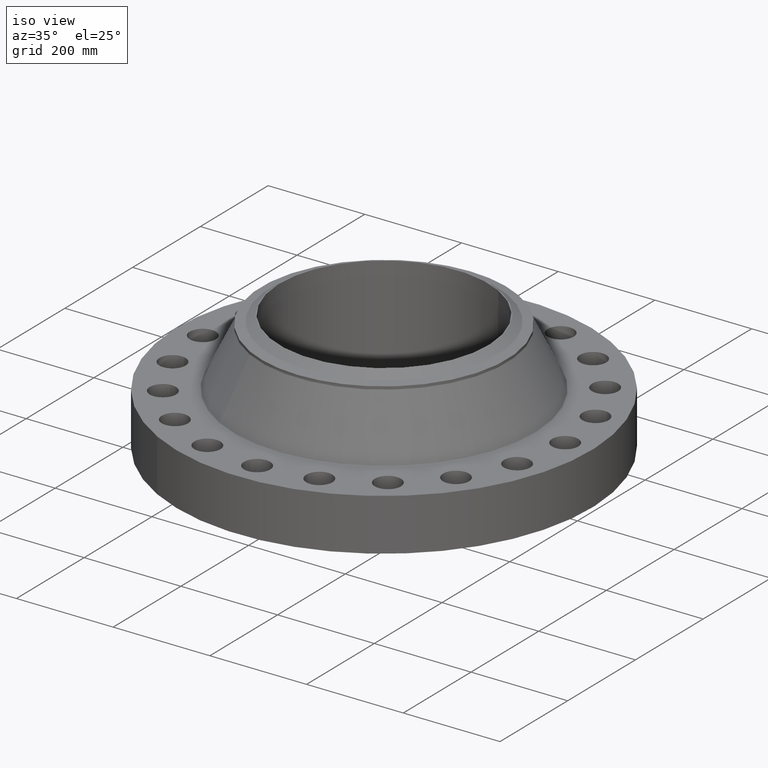
[diagram: clean part render]
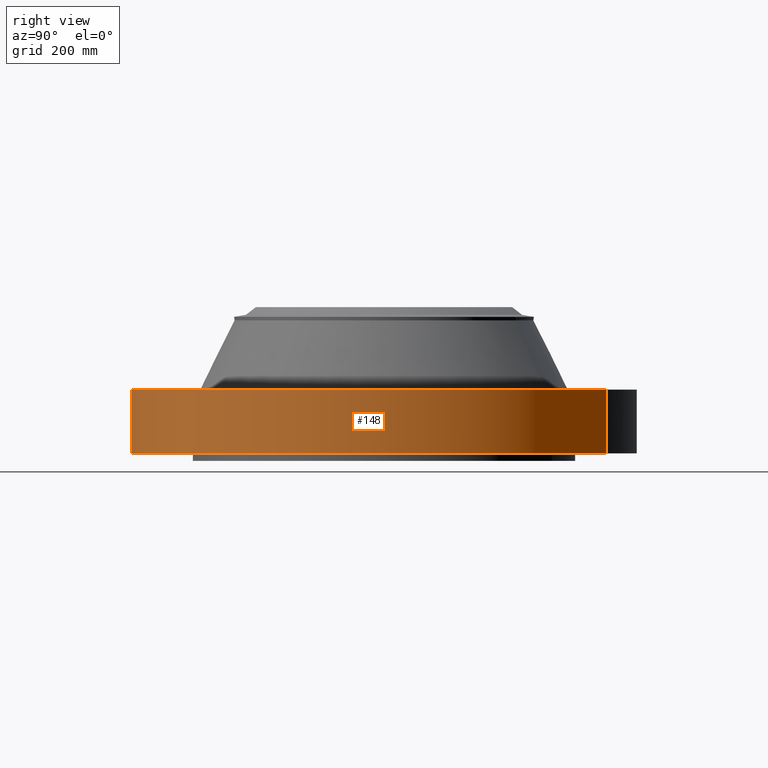
[diagram: tour spotlight — one face highlighted and labeled with its STEP entity id]
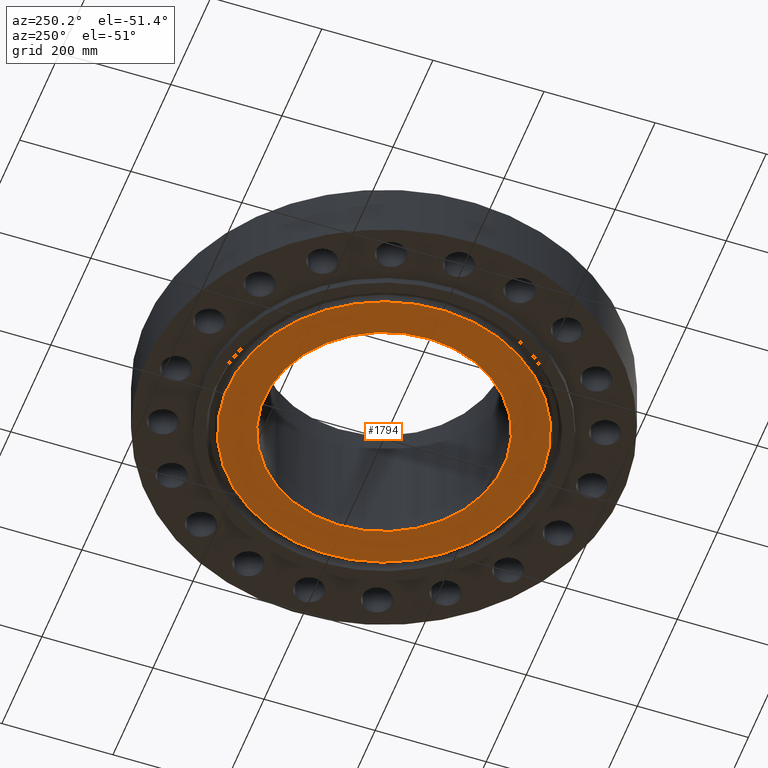
[diagram: tour spotlight — one face highlighted and labeled with its STEP entity id]
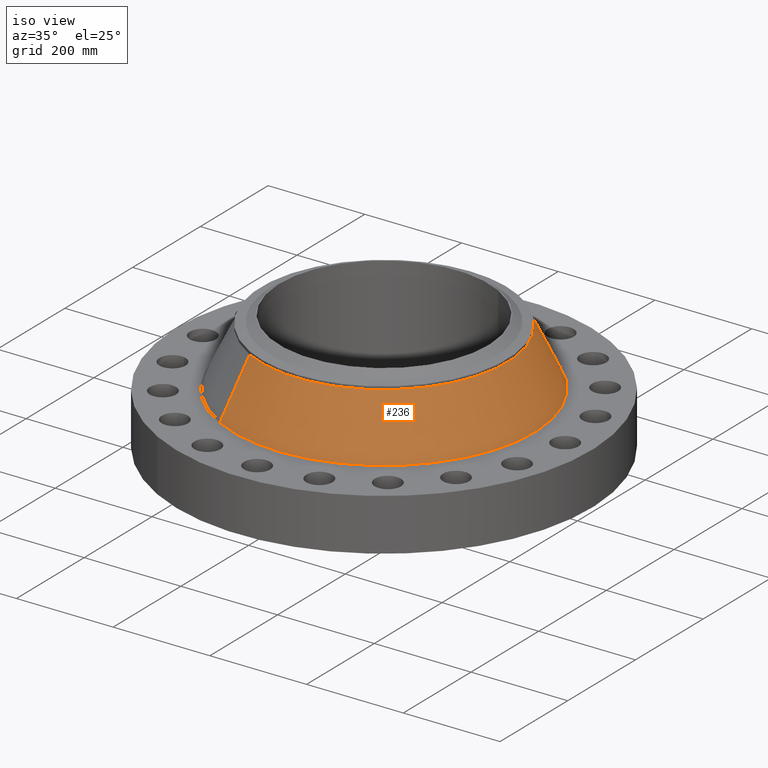
[diagram: tour spotlight — one face highlighted and labeled with its STEP entity id]
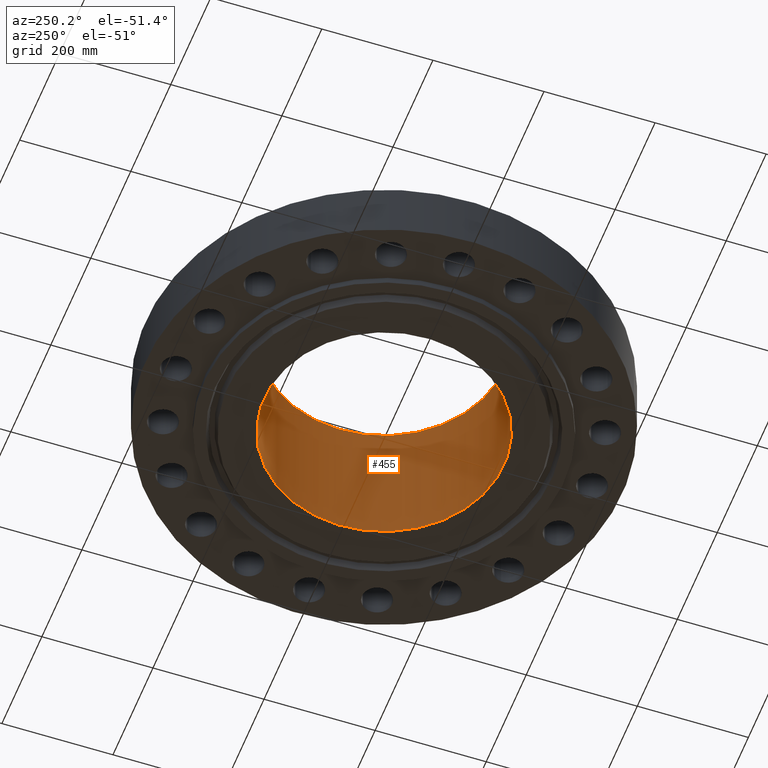
[diagram: tour spotlight — one face highlighted and labeled with its STEP entity id]
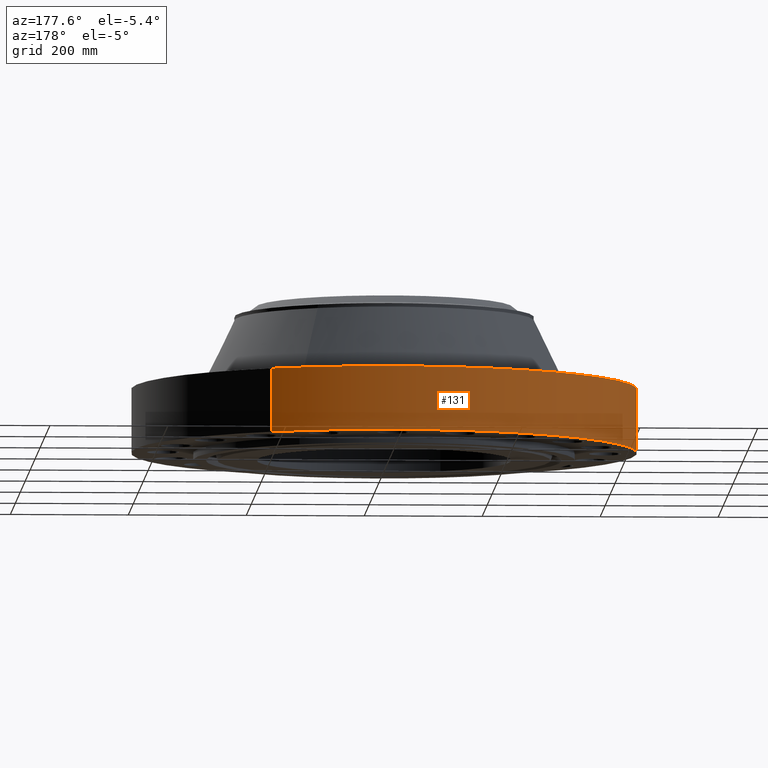
[diagram: tour spotlight — one face highlighted and labeled with its STEP entity id]
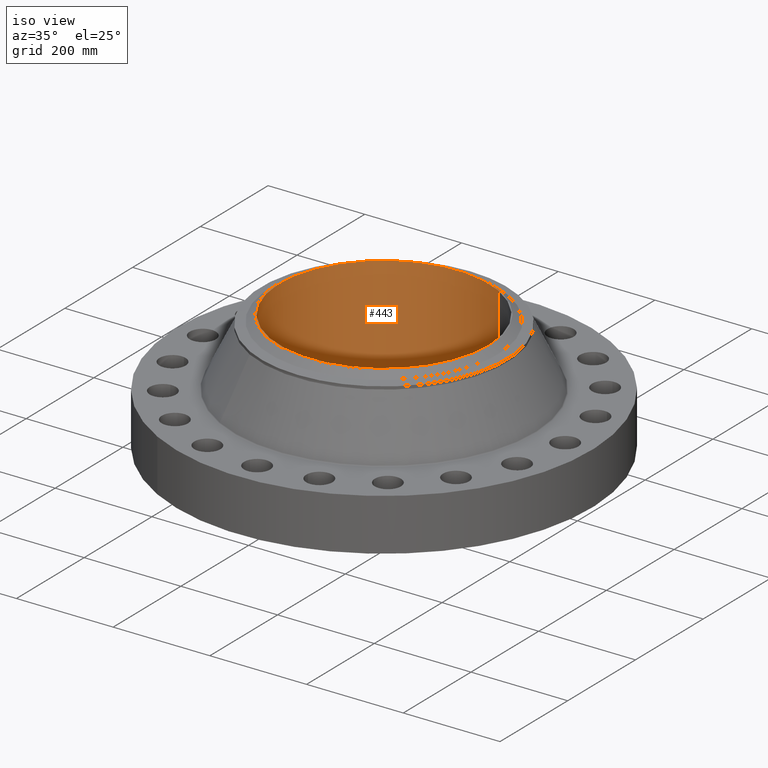
[diagram: tour spotlight — one face highlighted and labeled with its STEP entity id]
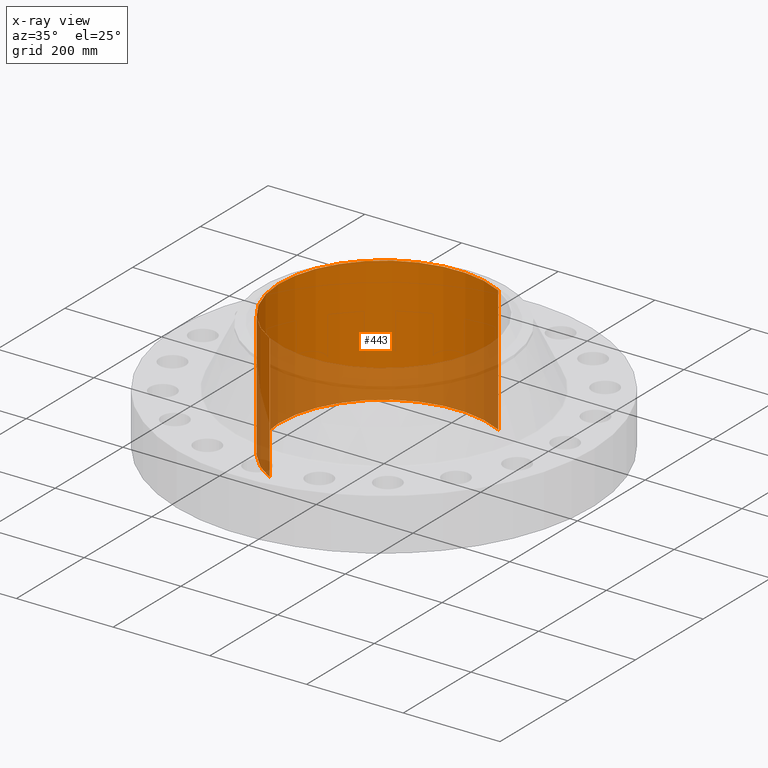
[diagram: x-ray of the same camera — body ghosted, this tour face saturated]
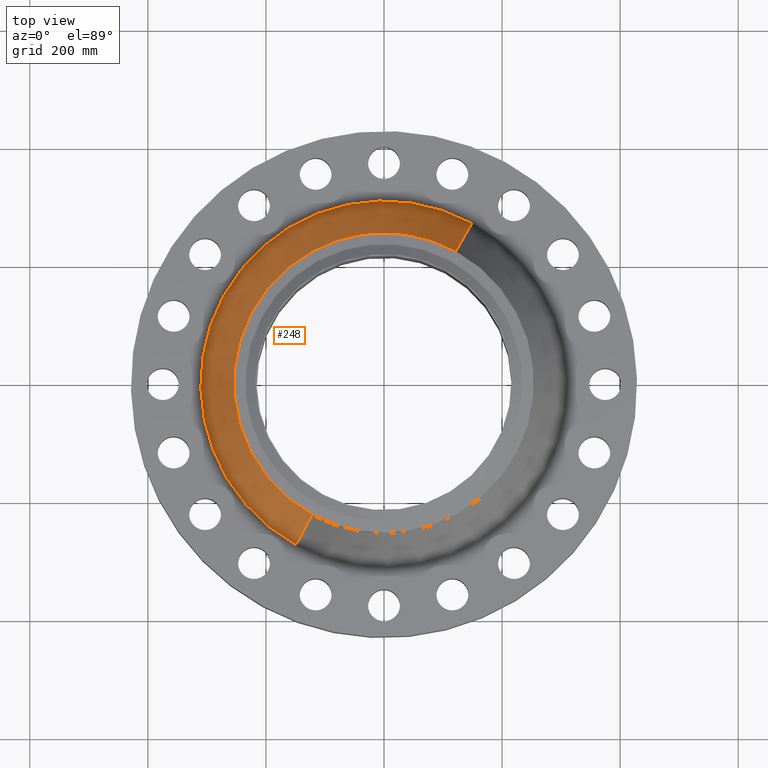
[diagram: tour spotlight — one face highlighted and labeled with its STEP entity id]
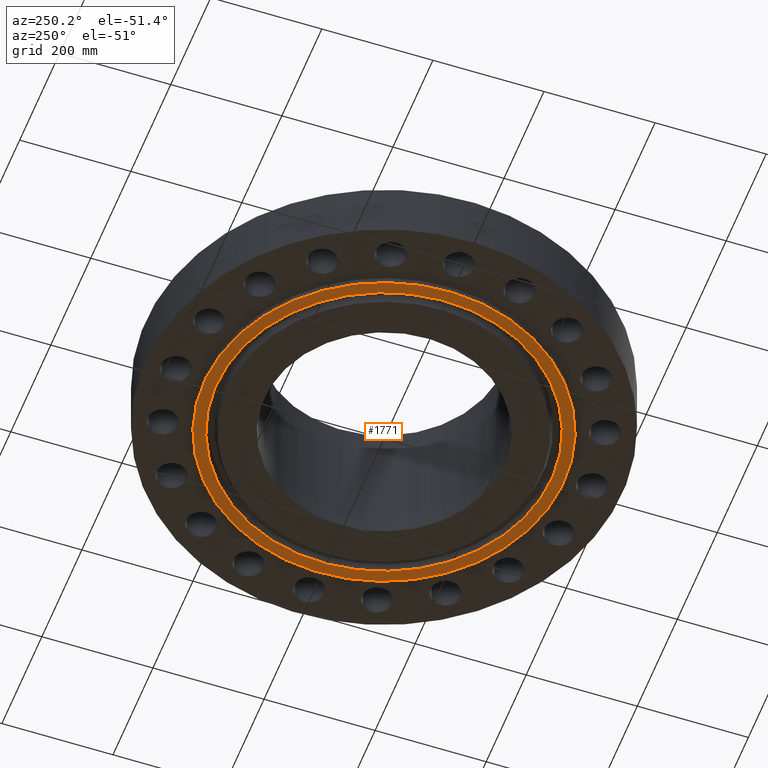
[diagram: tour spotlight — one face highlighted and labeled with its STEP entity id]
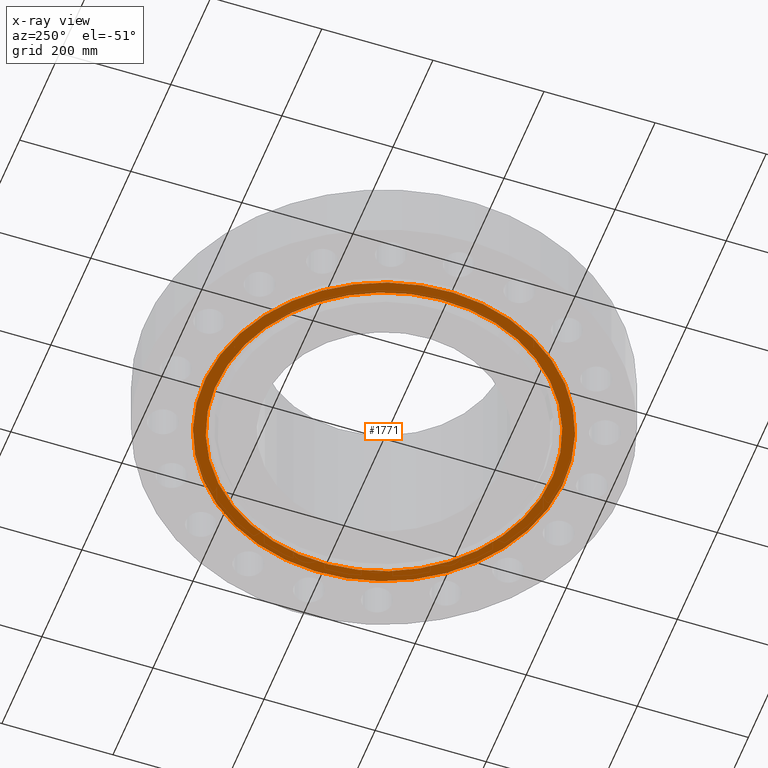
[diagram: x-ray of the same camera — body ghosted, this tour face saturated]
A machine part: a face-by-face anatomy tour. The part has 457 B-rep faces; the first image is the clean iso view, then the 8 largest visible faces are spotlighted one at a time (largest first), each with its STEP entity span.

Face 1 — right view, entity #148. In plain terms, the highlighted cylindrical surface (partial cylindrical patch) has radius 428.625 mm, axis along (0, 0, -1).
Definition (entity closure, byte-faithful):
#95=AXIS2_PLACEMENT_3D('Cylinder Axis2P3D',#92,#93,#94) ;
#134=AXIS2_PLACEMENT_3D('Circle Axis2P3D',#132,#133,$) ;
#139=AXIS2_PLACEMENT_3D('Circle Axis2P3D',#137,#138,$) ;
#92=CARTESIAN_POINT('Axis2P3D Location',(0.,0.,4.62500000002)) ;
#101=CARTESIAN_POINT('Vertex',(-8.09030596398,-14.809205732,1.67844740731E-015)) ;
#103=CARTESIAN_POINT('Vertex',(8.09030596398,14.809205732,1.67844740731E-015)) ;
#106=CARTESIAN_POINT('Line Origine',(-8.09030596398,-14.809205732,2.12500000001)) ;
#110=CARTESIAN_POINT('Vertex',(-8.09030596398,-14.809205732,4.25000000002)) ;
#117=CARTESIAN_POINT('Vertex',(8.09030596398,14.809205732,4.25000000002)) ;
#120=CARTESIAN_POINT('Line Origine',(8.09030596398,14.809205732,2.12500000001)) ;
#132=CARTESIAN_POINT('Axis2P3D Location',(0.,0.,1.67844740731E-015)) ;
#137=CARTESIAN_POINT('Axis2P3D Location',(0.,0.,4.25000000002)) ;
#93=DIRECTION('Axis2P3D Direction',(0.,0.,-0.0393700787402)) ;
#94=DIRECTION('Axis2P3D XDirection',(0.0188750212049,0.0345504945626,0.)) ;
#107=DIRECTION('Vector Direction',(0.,0.,-0.0393700787402)) ;
#121=DIRECTION('Vector Direction',(0.,0.,-0.0393700787402)) ;
#133=DIRECTION('Axis2P3D Direction',(0.,0.,-0.0393700787402)) ;
#138=DIRECTION('Axis2P3D Direction',(0.,0.,-0.0393700787402)) ;
#108=VECTOR('Line Direction',#107,0.0393700787402) ;
#122=VECTOR('Line Direction',#121,0.0393700787402) ;
#143=ORIENTED_EDGE('',*,*,#136,.F.) ;
#144=ORIENTED_EDGE('',*,*,#124,.T.) ;
#145=ORIENTED_EDGE('',*,*,#141,.T.) ;
#146=ORIENTED_EDGE('',*,*,#112,.F.) ;
#148=ADVANCED_FACE('PartBody',(#147),#96,.T.) ;
#135=CIRCLE('generated circle',#134,16.8750000001) ;
#140=CIRCLE('generated circle',#139,16.8750000001) ;
#96=CYLINDRICAL_SURFACE('generated cylinder',#95,16.8750000001) ;
#112=EDGE_CURVE('',#102,#111,#109,.F.) ;
#124=EDGE_CURVE('',#104,#118,#123,.F.) ;
#136=EDGE_CURVE('',#104,#102,#135,.T.) ;
#141=EDGE_CURVE('',#118,#111,#140,.T.) ;
#142=EDGE_LOOP('',(#143,#144,#145,#146)) ;
#147=FACE_OUTER_BOUND('',#142,.T.) ;
#109=LINE('Line',#106,#108) ;
#123=LINE('Line',#120,#122) ;
#102=VERTEX_POINT('',#101) ;
#104=VERTEX_POINT('',#103) ;
#111=VERTEX_POINT('',#110) ;
#118=VERTEX_POINT('',#117) ;

Face 2 — auxiliary view, entity #1794. In plain terms, the highlighted planar face has unit normal (0, 0, -1).
Definition (entity closure, byte-faithful):
#427=AXIS2_PLACEMENT_3D('Circle Axis2P3D',#425,#426,$) ;
#446=AXIS2_PLACEMENT_3D('Circle Axis2P3D',#444,#445,$) ;
#1747=AXIS2_PLACEMENT_3D('Plane Axis2P3D',#1744,#1745,#1746) ;
#1774=AXIS2_PLACEMENT_3D('Circle Axis2P3D',#1772,#1773,$) ;
#1783=AXIS2_PLACEMENT_3D('Circle Axis2P3D',#1781,#1782,$) ;
#422=CARTESIAN_POINT('Vertex',(-4.07511707815,-7.4594517761,-0.500000000002)) ;
#425=CARTESIAN_POINT('Axis2P3D Location',(0.,0.,-0.500000000002)) ;
#429=CARTESIAN_POINT('Vertex',(4.07511707815,7.4594517761,-0.500000000002)) ;
#444=CARTESIAN_POINT('Axis2P3D Location',(0.,0.,-0.500000000002)) ;
#1744=CARTESIAN_POINT('Axis2P3D Location',(0.,8.50000000003,-0.500000000002)) ;
#1772=CARTESIAN_POINT('Axis2P3D Location',(0.,-1.1189649382E-015,-0.500000000002)) ;
#1776=CARTESIAN_POINT('Vertex',(-5.32610610731,9.74937183398,-0.500000000002)) ;
#1778=CARTESIAN_POINT('Vertex',(5.32610610731,-9.74937183398,-0.500000000002)) ;
#1781=CARTESIAN_POINT('Axis2P3D Location',(2.23792987641E-015,-1.1189649382E-015,-0.500000000002)) ;
#426=DIRECTION('Axis2P3D Direction',(0.,0.,-0.0393700787402)) ;
#445=DIRECTION('Axis2P3D Direction',(0.,0.,-0.0393700787402)) ;
#1745=DIRECTION('Axis2P3D Direction',(0.,0.,-0.0393700787402)) ;
#1746=DIRECTION('Axis2P3D XDirection',(0.0393700787402,0.,0.)) ;
#1773=DIRECTION('Axis2P3D Direction',(0.,0.,-0.0393700787402)) ;
#1782=DIRECTION('Axis2P3D Direction',(0.,0.,-0.0393700787402)) ;
#1787=ORIENTED_EDGE('',*,*,#1780,.T.) ;
#1788=ORIENTED_EDGE('',*,*,#1785,.T.) ;
#1791=ORIENTED_EDGE('',*,*,#448,.F.) ;
#1792=ORIENTED_EDGE('',*,*,#431,.F.) ;
#1793=FACE_BOUND('',#1790,.T.) ;
#1794=ADVANCED_FACE('PartBody',(#1789,#1793),#1748,.T.) ;
#428=CIRCLE('generated circle',#427,8.50000000003) ;
#447=CIRCLE('generated circle',#446,8.50000000003) ;
#1775=CIRCLE('generated circle',#1774,11.10935) ;
#1784=CIRCLE('generated circle',#1783,11.10935) ;
#431=EDGE_CURVE('',#423,#430,#428,.T.) ;
#448=EDGE_CURVE('',#430,#423,#447,.T.) ;
#1780=EDGE_CURVE('',#1777,#1779,#1775,.T.) ;
#1785=EDGE_CURVE('',#1779,#1777,#1784,.T.) ;
#1786=EDGE_LOOP('',(#1787,#1788)) ;
#1790=EDGE_LOOP('',(#1791,#1792)) ;
#1789=FACE_OUTER_BOUND('',#1786,.T.) ;
#1748=PLANE('',#1747) ;
#423=VERTEX_POINT('',#422) ;
#430=VERTEX_POINT('',#429) ;
#1777=VERTEX_POINT('',#1776) ;
#1779=VERTEX_POINT('',#1778) ;

Face 3 — iso view, entity #236. In plain terms, the highlighted conical surface has half-angle 25.978 deg.
Definition (entity closure, byte-faithful):
#172=AXIS2_PLACEMENT_3D('Circle Axis2P3D',#170,#171,$) ;
#209=AXIS2_PLACEMENT_3D('Cone Axis2P3D',#206,#207,#208) ;
#220=AXIS2_PLACEMENT_3D('Circle Axis2P3D',#218,#219,$) ;
#167=CARTESIAN_POINT('Vertex',(5.85720927136,10.7215496547,4.31743631846)) ;
#170=CARTESIAN_POINT('Axis2P3D Location',(0.,0.,4.31743631846)) ;
#174=CARTESIAN_POINT('Vertex',(-5.85720927136,-10.7215496547,4.31743631846)) ;
#206=CARTESIAN_POINT('Axis2P3D Location',(0.,0.,8.86762188479)) ;
#211=CARTESIAN_POINT('Line Origine',(5.32573232871,9.74868763683,6.59252910163)) ;
#215=CARTESIAN_POINT('Vertex',(4.79425538606,8.77582561894,8.86762188479)) ;
#218=CARTESIAN_POINT('Axis2P3D Location',(0.,0.,8.86762188479)) ;
#222=CARTESIAN_POINT('Vertex',(-4.79425538606,-8.77582561894,8.86762188479)) ;
#225=CARTESIAN_POINT('Line Origine',(-5.32573232871,-9.74868763683,6.59252910163)) ;
#171=DIRECTION('Axis2P3D Direction',(0.,0.,-0.0393700787402)) ;
#207=DIRECTION('Axis2P3D Direction',(0.,0.,-0.0393700787402)) ;
#208=DIRECTION('Axis2P3D XDirection',(-0.0188750212049,-0.0345504945626,0.)) ;
#212=DIRECTION('Vector Direction',(0.00826783836718,0.0151341766162,-0.0353921269054)) ;
#219=DIRECTION('Axis2P3D Direction',(0.,0.,-0.0393700787402)) ;
#226=DIRECTION('Vector Direction',(-0.00826783836718,-0.0151341766162,-0.0353921269054)) ;
#213=VECTOR('Line Direction',#212,0.0393700787402) ;
#227=VECTOR('Line Direction',#226,0.0393700787402) ;
#231=ORIENTED_EDGE('',*,*,#176,.F.) ;
#232=ORIENTED_EDGE('',*,*,#217,.T.) ;
#233=ORIENTED_EDGE('',*,*,#224,.T.) ;
#234=ORIENTED_EDGE('',*,*,#229,.F.) ;
#236=ADVANCED_FACE('PartBody',(#235),#210,.T.) ;
#173=CIRCLE('generated circle',#172,12.2171407231) ;
#221=CIRCLE('generated circle',#220,10.) ;
#210=CONICAL_SURFACE('Cone',#209,10.,0.45340683612) ;
#176=EDGE_CURVE('',#168,#175,#173,.T.) ;
#217=EDGE_CURVE('',#168,#216,#214,.F.) ;
#224=EDGE_CURVE('',#216,#223,#221,.T.) ;
#229=EDGE_CURVE('',#175,#223,#228,.F.) ;
#230=EDGE_LOOP('',(#231,#232,#233,#234)) ;
#235=FACE_OUTER_BOUND('',#230,.T.) ;
#214=LINE('Line',#211,#213) ;
#228=LINE('Line',#225,#227) ;
#168=VERTEX_POINT('',#167) ;
#175=VERTEX_POINT('',#174) ;
#216=VERTEX_POINT('',#215) ;
#223=VERTEX_POINT('',#222) ;

Face 4 — auxiliary view, entity #455. In plain terms, the highlighted cylindrical surface (partial cylindrical patch) has radius 215.9 mm, axis along (0, 0, -1).
Definition (entity closure, byte-faithful):
#374=AXIS2_PLACEMENT_3D('Circle Axis2P3D',#372,#373,$) ;
#416=AXIS2_PLACEMENT_3D('Cylinder Axis2P3D',#413,#414,#415) ;
#446=AXIS2_PLACEMENT_3D('Circle Axis2P3D',#444,#445,$) ;
#367=CARTESIAN_POINT('Vertex',(-4.07511707815,-7.4594517761,9.75000000004)) ;
#369=CARTESIAN_POINT('Vertex',(4.07511707815,7.4594517761,9.75000000004)) ;
#372=CARTESIAN_POINT('Axis2P3D Location',(0.,0.,9.75000000004)) ;
#413=CARTESIAN_POINT('Axis2P3D Location',(0.,0.,4.62500000002)) ;
#418=CARTESIAN_POINT('Line Origine',(-4.07511707815,-7.4594517761,4.62500000002)) ;
#422=CARTESIAN_POINT('Vertex',(-4.07511707815,-7.4594517761,-0.500000000002)) ;
#429=CARTESIAN_POINT('Vertex',(4.07511707815,7.4594517761,-0.500000000002)) ;
#432=CARTESIAN_POINT('Line Origine',(4.07511707815,7.4594517761,4.62500000002)) ;
#444=CARTESIAN_POINT('Axis2P3D Location',(0.,0.,-0.500000000002)) ;
#373=DIRECTION('Axis2P3D Direction',(0.,0.,-0.0393700787402)) ;
#414=DIRECTION('Axis2P3D Direction',(0.,0.,-0.0393700787402)) ;
#415=DIRECTION('Axis2P3D XDirection',(0.0188750212049,0.0345504945626,0.)) ;
#419=DIRECTION('Vector Direction',(0.,0.,-0.0393700787402)) ;
#433=DIRECTION('Vector Direction',(0.,0.,-0.0393700787402)) ;
#445=DIRECTION('Axis2P3D Direction',(0.,0.,-0.0393700787402)) ;
#420=VECTOR('Line Direction',#419,0.0393700787402) ;
#434=VECTOR('Line Direction',#433,0.0393700787402) ;
#450=ORIENTED_EDGE('',*,*,#376,.F.) ;
#451=ORIENTED_EDGE('',*,*,#436,.T.) ;
#452=ORIENTED_EDGE('',*,*,#448,.T.) ;
#453=ORIENTED_EDGE('',*,*,#424,.F.) ;
#455=ADVANCED_FACE('PartBody',(#454),#417,.F.) ;
#375=CIRCLE('generated circle',#374,8.50000000003) ;
#447=CIRCLE('generated circle',#446,8.50000000003) ;
#417=CYLINDRICAL_SURFACE('generated cylinder',#416,8.50000000003) ;
#376=EDGE_CURVE('',#370,#368,#375,.T.) ;
#424=EDGE_CURVE('',#368,#423,#421,.T.) ;
#436=EDGE_CURVE('',#370,#430,#435,.T.) ;
#448=EDGE_CURVE('',#430,#423,#447,.T.) ;
#449=EDGE_LOOP('',(#450,#451,#452,#453)) ;
#454=FACE_OUTER_BOUND('',#449,.T.) ;
#421=LINE('Line',#418,#420) ;
#435=LINE('Line',#432,#434) ;
#368=VERTEX_POINT('',#367) ;
#370=VERTEX_POINT('',#369) ;
#423=VERTEX_POINT('',#422) ;
#430=VERTEX_POINT('',#429) ;

Face 5 — auxiliary view, entity #131. In plain terms, the highlighted cylindrical surface (partial cylindrical patch) has radius 428.625 mm, axis along (0, 0, -1).
Definition (entity closure, byte-faithful):
#95=AXIS2_PLACEMENT_3D('Cylinder Axis2P3D',#92,#93,#94) ;
#99=AXIS2_PLACEMENT_3D('Circle Axis2P3D',#97,#98,$) ;
#115=AXIS2_PLACEMENT_3D('Circle Axis2P3D',#113,#114,$) ;
#92=CARTESIAN_POINT('Axis2P3D Location',(0.,0.,4.62500000002)) ;
#97=CARTESIAN_POINT('Axis2P3D Location',(0.,0.,1.67844740731E-015)) ;
#101=CARTESIAN_POINT('Vertex',(-8.09030596398,-14.809205732,1.67844740731E-015)) ;
#103=CARTESIAN_POINT('Vertex',(8.09030596398,14.809205732,1.67844740731E-015)) ;
#106=CARTESIAN_POINT('Line Origine',(-8.09030596398,-14.809205732,2.12500000001)) ;
#110=CARTESIAN_POINT('Vertex',(-8.09030596398,-14.809205732,4.25000000002)) ;
#113=CARTESIAN_POINT('Axis2P3D Location',(0.,0.,4.25000000002)) ;
#117=CARTESIAN_POINT('Vertex',(8.09030596398,14.809205732,4.25000000002)) ;
#120=CARTESIAN_POINT('Line Origine',(8.09030596398,14.809205732,2.12500000001)) ;
#93=DIRECTION('Axis2P3D Direction',(0.,0.,-0.0393700787402)) ;
#94=DIRECTION('Axis2P3D XDirection',(0.0188750212049,0.0345504945626,0.)) ;
#98=DIRECTION('Axis2P3D Direction',(0.,0.,-0.0393700787402)) ;
#107=DIRECTION('Vector Direction',(0.,0.,-0.0393700787402)) ;
#114=DIRECTION('Axis2P3D Direction',(0.,0.,-0.0393700787402)) ;
#121=DIRECTION('Vector Direction',(0.,0.,-0.0393700787402)) ;
#108=VECTOR('Line Direction',#107,0.0393700787402) ;
#122=VECTOR('Line Direction',#121,0.0393700787402) ;
#126=ORIENTED_EDGE('',*,*,#105,.F.) ;
#127=ORIENTED_EDGE('',*,*,#112,.T.) ;
#128=ORIENTED_EDGE('',*,*,#119,.T.) ;
#129=ORIENTED_EDGE('',*,*,#124,.F.) ;
#131=ADVANCED_FACE('PartBody',(#130),#96,.T.) ;
#100=CIRCLE('generated circle',#99,16.8750000001) ;
#116=CIRCLE('generated circle',#115,16.8750000001) ;
#96=CYLINDRICAL_SURFACE('generated cylinder',#95,16.8750000001) ;
#105=EDGE_CURVE('',#102,#104,#100,.T.) ;
#112=EDGE_CURVE('',#102,#111,#109,.F.) ;
#119=EDGE_CURVE('',#111,#118,#116,.T.) ;
#124=EDGE_CURVE('',#104,#118,#123,.F.) ;
#125=EDGE_LOOP('',(#126,#127,#128,#129)) ;
#130=FACE_OUTER_BOUND('',#125,.T.) ;
#109=LINE('Line',#106,#108) ;
#123=LINE('Line',#120,#122) ;
#102=VERTEX_POINT('',#101) ;
#104=VERTEX_POINT('',#103) ;
#111=VERTEX_POINT('',#110) ;
#118=VERTEX_POINT('',#117) ;

Face 6 — iso view, entity #443. An x-ray twin of the same camera follows (body ghosted, this face saturated) — the face is partly hidden behind the body. In plain terms, the highlighted cylindrical surface (partial cylindrical patch) has radius 215.9 mm, axis along (0, 0, -1).
Definition (entity closure, byte-faithful):
#365=AXIS2_PLACEMENT_3D('Circle Axis2P3D',#363,#364,$) ;
#416=AXIS2_PLACEMENT_3D('Cylinder Axis2P3D',#413,#414,#415) ;
#427=AXIS2_PLACEMENT_3D('Circle Axis2P3D',#425,#426,$) ;
#363=CARTESIAN_POINT('Axis2P3D Location',(0.,0.,9.75000000004)) ;
#367=CARTESIAN_POINT('Vertex',(-4.07511707815,-7.4594517761,9.75000000004)) ;
#369=CARTESIAN_POINT('Vertex',(4.07511707815,7.4594517761,9.75000000004)) ;
#413=CARTESIAN_POINT('Axis2P3D Location',(0.,0.,4.62500000002)) ;
#418=CARTESIAN_POINT('Line Origine',(-4.07511707815,-7.4594517761,4.62500000002)) ;
#422=CARTESIAN_POINT('Vertex',(-4.07511707815,-7.4594517761,-0.500000000002)) ;
#425=CARTESIAN_POINT('Axis2P3D Location',(0.,0.,-0.500000000002)) ;
#429=CARTESIAN_POINT('Vertex',(4.07511707815,7.4594517761,-0.500000000002)) ;
#432=CARTESIAN_POINT('Line Origine',(4.07511707815,7.4594517761,4.62500000002)) ;
#364=DIRECTION('Axis2P3D Direction',(0.,0.,-0.0393700787402)) ;
#414=DIRECTION('Axis2P3D Direction',(0.,0.,-0.0393700787402)) ;
#415=DIRECTION('Axis2P3D XDirection',(0.0188750212049,0.0345504945626,0.)) ;
#419=DIRECTION('Vector Direction',(0.,0.,-0.0393700787402)) ;
#426=DIRECTION('Axis2P3D Direction',(0.,0.,-0.0393700787402)) ;
#433=DIRECTION('Vector Direction',(0.,0.,-0.0393700787402)) ;
#420=VECTOR('Line Direction',#419,0.0393700787402) ;
#434=VECTOR('Line Direction',#433,0.0393700787402) ;
#438=ORIENTED_EDGE('',*,*,#371,.F.) ;
#439=ORIENTED_EDGE('',*,*,#424,.T.) ;
#440=ORIENTED_EDGE('',*,*,#431,.T.) ;
#441=ORIENTED_EDGE('',*,*,#436,.F.) ;
#443=ADVANCED_FACE('PartBody',(#442),#417,.F.) ;
#366=CIRCLE('generated circle',#365,8.50000000003) ;
#428=CIRCLE('generated circle',#427,8.50000000003) ;
#417=CYLINDRICAL_SURFACE('generated cylinder',#416,8.50000000003) ;
#371=EDGE_CURVE('',#368,#370,#366,.T.) ;
#424=EDGE_CURVE('',#368,#423,#421,.T.) ;
#431=EDGE_CURVE('',#423,#430,#428,.T.) ;
#436=EDGE_CURVE('',#370,#430,#435,.T.) ;
#437=EDGE_LOOP('',(#438,#439,#440,#441)) ;
#442=FACE_OUTER_BOUND('',#437,.T.) ;
#421=LINE('Line',#418,#420) ;
#435=LINE('Line',#432,#434) ;
#368=VERTEX_POINT('',#367) ;
#370=VERTEX_POINT('',#369) ;
#423=VERTEX_POINT('',#422) ;
#430=VERTEX_POINT('',#429) ;

Face 7 — top view, entity #248. In plain terms, the highlighted conical surface has half-angle 25.978 deg.
Definition (entity closure, byte-faithful):
#196=AXIS2_PLACEMENT_3D('Circle Axis2P3D',#194,#195,$) ;
#209=AXIS2_PLACEMENT_3D('Cone Axis2P3D',#206,#207,#208) ;
#239=AXIS2_PLACEMENT_3D('Circle Axis2P3D',#237,#238,$) ;
#167=CARTESIAN_POINT('Vertex',(5.85720927136,10.7215496547,4.31743631846)) ;
#174=CARTESIAN_POINT('Vertex',(-5.85720927136,-10.7215496547,4.31743631846)) ;
#194=CARTESIAN_POINT('Axis2P3D Location',(0.,0.,4.31743631846)) ;
#206=CARTESIAN_POINT('Axis2P3D Location',(0.,0.,8.86762188479)) ;
#211=CARTESIAN_POINT('Line Origine',(5.32573232871,9.74868763683,6.59252910163)) ;
#215=CARTESIAN_POINT('Vertex',(4.79425538606,8.77582561894,8.86762188479)) ;
#222=CARTESIAN_POINT('Vertex',(-4.79425538606,-8.77582561894,8.86762188479)) ;
#225=CARTESIAN_POINT('Line Origine',(-5.32573232871,-9.74868763683,6.59252910163)) ;
#237=CARTESIAN_POINT('Axis2P3D Location',(0.,0.,8.86762188479)) ;
#195=DIRECTION('Axis2P3D Direction',(0.,0.,-0.0393700787402)) ;
#207=DIRECTION('Axis2P3D Direction',(0.,0.,-0.0393700787402)) ;
#208=DIRECTION('Axis2P3D XDirection',(-0.0188750212049,-0.0345504945626,0.)) ;
#212=DIRECTION('Vector Direction',(0.00826783836718,0.0151341766162,-0.0353921269054)) ;
#226=DIRECTION('Vector Direction',(-0.00826783836718,-0.0151341766162,-0.0353921269054)) ;
#238=DIRECTION('Axis2P3D Direction',(0.,0.,-0.0393700787402)) ;
#213=VECTOR('Line Direction',#212,0.0393700787402) ;
#227=VECTOR('Line Direction',#226,0.0393700787402) ;
#243=ORIENTED_EDGE('',*,*,#198,.F.) ;
#244=ORIENTED_EDGE('',*,*,#229,.T.) ;
#245=ORIENTED_EDGE('',*,*,#241,.T.) ;
#246=ORIENTED_EDGE('',*,*,#217,.F.) ;
#248=ADVANCED_FACE('PartBody',(#247),#210,.T.) ;
#197=CIRCLE('generated circle',#196,12.2171407231) ;
#240=CIRCLE('generated circle',#239,10.) ;
#210=CONICAL_SURFACE('Cone',#209,10.,0.45340683612) ;
#198=EDGE_CURVE('',#175,#168,#197,.T.) ;
#217=EDGE_CURVE('',#168,#216,#214,.F.) ;
#229=EDGE_CURVE('',#175,#223,#228,.F.) ;
#241=EDGE_CURVE('',#223,#216,#240,.T.) ;
#242=EDGE_LOOP('',(#243,#244,#245,#246)) ;
#247=FACE_OUTER_BOUND('',#242,.T.) ;
#214=LINE('Line',#211,#213) ;
#228=LINE('Line',#225,#227) ;
#168=VERTEX_POINT('',#167) ;
#175=VERTEX_POINT('',#174) ;
#216=VERTEX_POINT('',#215) ;
#223=VERTEX_POINT('',#222) ;

Face 8 — auxiliary view, entity #1771. An x-ray twin of the same camera follows (body ghosted, this face saturated) — the face is partly hidden behind the body. In plain terms, the highlighted planar face has unit normal (0, 0, -1).
Definition (entity closure, byte-faithful):
#517=AXIS2_PLACEMENT_3D('Circle Axis2P3D',#515,#516,$) ;
#552=AXIS2_PLACEMENT_3D('Circle Axis2P3D',#550,#551,$) ;
#1747=AXIS2_PLACEMENT_3D('Plane Axis2P3D',#1744,#1745,#1746) ;
#1755=AXIS2_PLACEMENT_3D('Circle Axis2P3D',#1753,#1754,$) ;
#1764=AXIS2_PLACEMENT_3D('Circle Axis2P3D',#1762,#1763,$) ;
#515=CARTESIAN_POINT('Axis2P3D Location',(0.,0.,-0.500000000002)) ;
#519=CARTESIAN_POINT('Vertex',(-6.11267561723,-11.1891776641,-0.500000000002)) ;
#521=CARTESIAN_POINT('Vertex',(6.11267561723,11.1891776641,-0.500000000002)) ;
#550=CARTESIAN_POINT('Axis2P3D Location',(0.,0.,-0.500000000002)) ;
#1744=CARTESIAN_POINT('Axis2P3D Location',(0.,8.50000000003,-0.500000000002)) ;
#1753=CARTESIAN_POINT('Axis2P3D Location',(-1.1189649382E-015,-1.1189649382E-015,-0.500000000002)) ;
#1757=CARTESIAN_POINT('Vertex',(5.70068128063,-10.4350270896,-0.500000000002)) ;
#1759=CARTESIAN_POINT('Vertex',(-5.70068128063,10.4350270896,-0.500000000002)) ;
#1762=CARTESIAN_POINT('Axis2P3D Location',(-1.1189649382E-015,-1.1189649382E-015,-0.500000000002)) ;
#516=DIRECTION('Axis2P3D Direction',(0.,0.,-0.0393700787402)) ;
#551=DIRECTION('Axis2P3D Direction',(0.,0.,-0.0393700787402)) ;
#1745=DIRECTION('Axis2P3D Direction',(0.,0.,-0.0393700787402)) ;
#1746=DIRECTION('Axis2P3D XDirection',(0.0393700787402,0.,0.)) ;
#1754=DIRECTION('Axis2P3D Direction',(0.,0.,-0.0393700787402)) ;
#1763=DIRECTION('Axis2P3D Direction',(0.,0.,-0.0393700787402)) ;
#1750=ORIENTED_EDGE('',*,*,#523,.T.) ;
#1751=ORIENTED_EDGE('',*,*,#554,.T.) ;
#1768=ORIENTED_EDGE('',*,*,#1761,.F.) ;
#1769=ORIENTED_EDGE('',*,*,#1766,.F.) ;
#1770=FACE_BOUND('',#1767,.T.) ;
#1771=ADVANCED_FACE('PartBody',(#1752,#1770),#1748,.T.) ;
#518=CIRCLE('generated circle',#517,12.7500000001) ;
#553=CIRCLE('generated circle',#552,12.7500000001) ;
#1756=CIRCLE('generated circle',#1755,11.89065) ;
#1765=CIRCLE('generated circle',#1764,11.89065) ;
#523=EDGE_CURVE('',#520,#522,#518,.T.) ;
#554=EDGE_CURVE('',#522,#520,#553,.T.) ;
#1761=EDGE_CURVE('',#1758,#1760,#1756,.T.) ;
#1766=EDGE_CURVE('',#1760,#1758,#1765,.T.) ;
#1749=EDGE_LOOP('',(#1750,#1751)) ;
#1767=EDGE_LOOP('',(#1768,#1769)) ;
#1752=FACE_OUTER_BOUND('',#1749,.T.) ;
#1748=PLANE('',#1747) ;
#520=VERTEX_POINT('',#519) ;
#522=VERTEX_POINT('',#521) ;
#1758=VERTEX_POINT('',#1757) ;
#1760=VERTEX_POINT('',#1759) ;